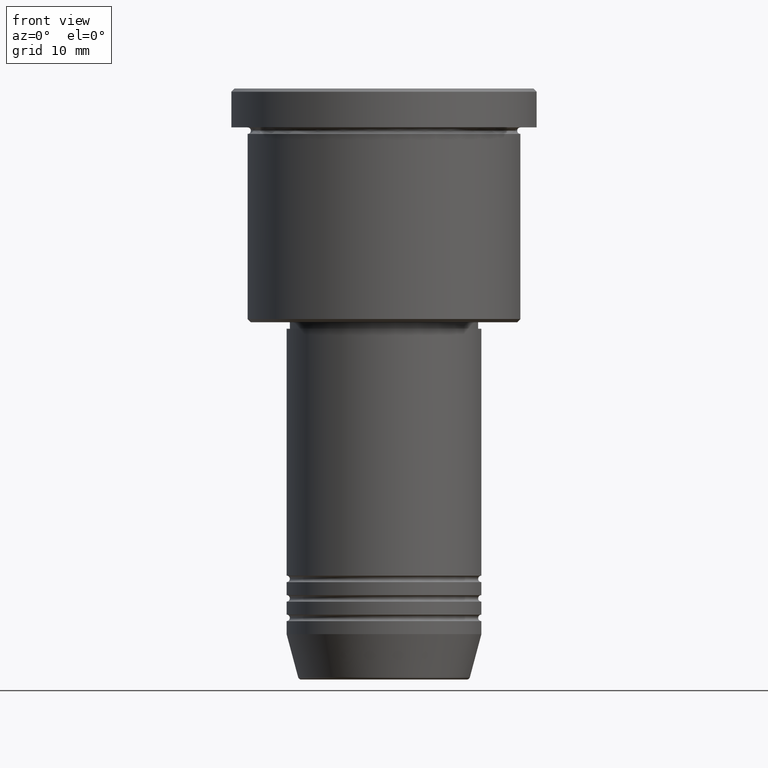
[diagram: clean part render]
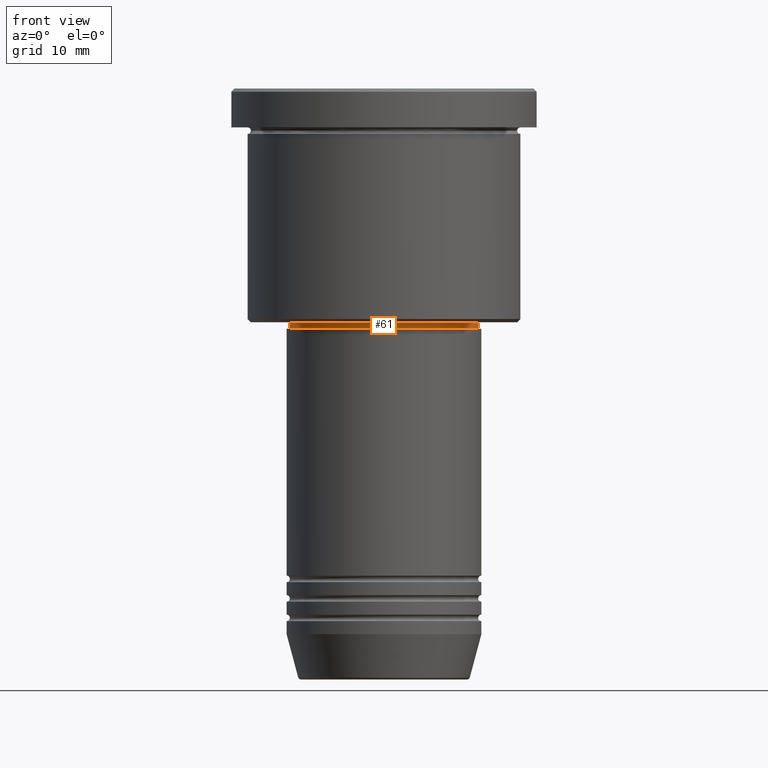
[diagram: same view with one face highlighted and labeled with its STEP entity id]
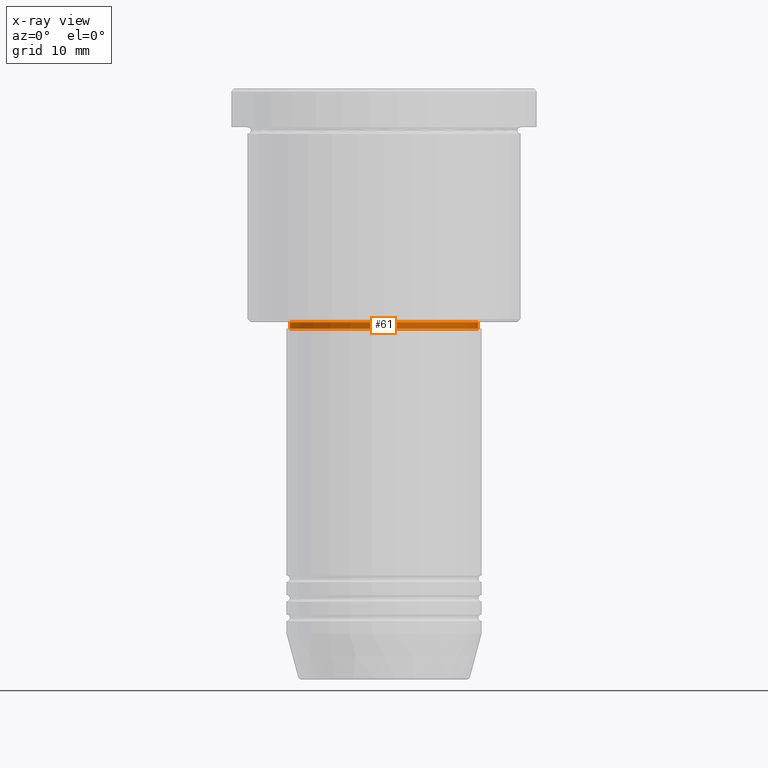
[diagram: x-ray of the same camera — body ghosted, the highlighted face saturated]
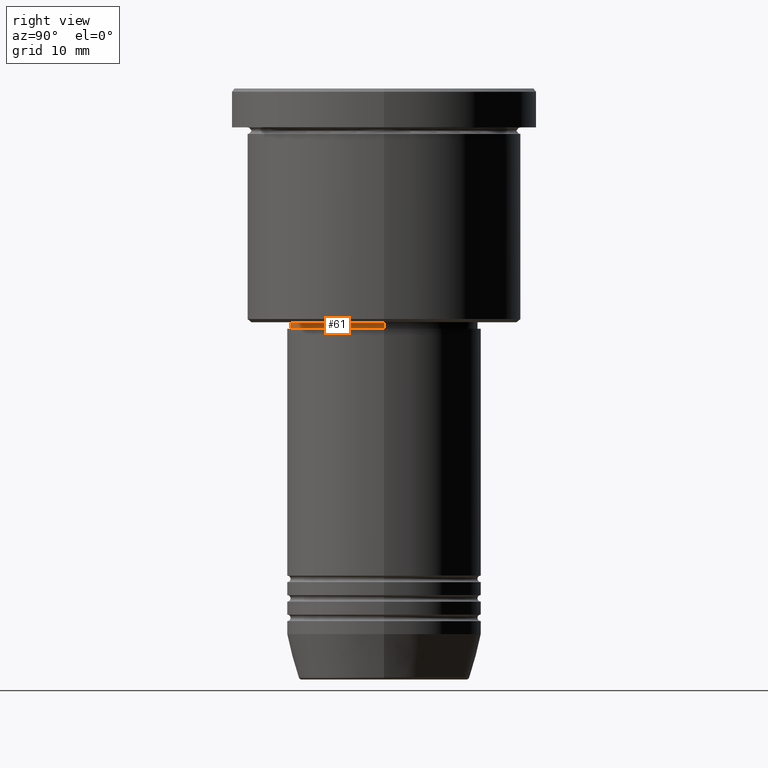
[diagram: same view with one face highlighted and labeled with its STEP entity id]
A machine part, front view. The second image highlights one B-rep face of the part: STEP entity #61.
The next image is the same camera in x-ray: the body ghosted, the highlighted face saturated — about 0% of this face is hidden behind the body in this view.
A second angle (right view) of the same face is appended — the face is thin or edge-on in the first view.
In plain terms, the highlighted cylindrical surface (partial cylindrical patch) has radius 14.5 mm, axis along (-0, -0, 1).
Its self-contained STEP definition (entity closure, byte-faithful):
#2 = CARTESIAN_POINT ( 'NONE',  ( 0.000000000000000000, 0.000000000000000000, -35.99999999999999289 ) ) ;
#3 = AXIS2_PLACEMENT_3D ( 'NONE', #1177, #1183, #548 ) ;
#31 = VERTEX_POINT ( 'NONE', #698 ) ;
#61 = ADVANCED_FACE ( 'NONE', ( #342 ), #960, .T. ) ;
#87 = VERTEX_POINT ( 'NONE', #976 ) ;
#99 = DIRECTION ( 'NONE',  ( 1.000000000000000000, 0.000000000000000000, 0.000000000000000000 ) ) ;
#115 = EDGE_CURVE ( 'NONE', #87, #765, #1061, .T. ) ;
#136 = ORIENTED_EDGE ( 'NONE', *, *, #115, .F. ) ;
#153 = DIRECTION ( 'NONE',  ( 1.000000000000000000, 0.000000000000000000, 0.000000000000000000 ) ) ;
#156 = CARTESIAN_POINT ( 'NONE',  ( 14.49999999999999822, 0.000000000000000000, 0.000000000000000000 ) ) ;
#182 = EDGE_CURVE ( 'NONE', #765, #1038, #957, .T. ) ;
#298 = EDGE_LOOP ( 'NONE', ( #136, #1087, #869, #482 ) ) ;
#342 = FACE_OUTER_BOUND ( 'NONE', #298, .T. ) ;
#367 = CIRCLE ( 'NONE', #3, 14.49999999999999822 ) ;
#413 = CARTESIAN_POINT ( 'NONE',  ( 0.000000000000000000, 0.000000000000000000, 0.000000000000000000 ) ) ;
#463 = VECTOR ( 'NONE', #992, 1000.000000000000000 ) ;
#482 = ORIENTED_EDGE ( 'NONE', *, *, #182, .F. ) ;
#494 = EDGE_CURVE ( 'NONE', #31, #1038, #1057, .T. ) ;
#519 = CARTESIAN_POINT ( 'NONE',  ( 14.49999999999999822, 0.000000000000000000, -35.99999999999999289 ) ) ;
#544 = DIRECTION ( 'NONE',  ( -0.000000000000000000, -0.000000000000000000, 1.000000000000000000 ) ) ;
#548 = DIRECTION ( 'NONE',  ( 1.000000000000000000, 0.000000000000000000, 0.000000000000000000 ) ) ;
#606 = DIRECTION ( 'NONE',  ( -0.000000000000000000, -0.000000000000000000, 1.000000000000000000 ) ) ;
#667 = EDGE_CURVE ( 'NONE', #87, #31, #367, .T. ) ;
#698 = CARTESIAN_POINT ( 'NONE',  ( 14.49999999999999822, 0.000000000000000000, -36.99999999999999289 ) ) ;
#765 = VERTEX_POINT ( 'NONE', #822 ) ;
#812 = DIRECTION ( 'NONE',  ( -0.000000000000000000, -0.000000000000000000, 1.000000000000000000 ) ) ;
#822 = CARTESIAN_POINT ( 'NONE',  ( -14.49999999999999822, 1.775737858763662015E-15, -35.99999999999999289 ) ) ;
#869 = ORIENTED_EDGE ( 'NONE', *, *, #494, .T. ) ;
#899 = VECTOR ( 'NONE', #606, 1000.000000000000000 ) ;
#957 = CIRCLE ( 'NONE', #1180, 14.49999999999999822 ) ;
#960 = CYLINDRICAL_SURFACE ( 'NONE', #1163, 14.49999999999999822 ) ;
#976 = CARTESIAN_POINT ( 'NONE',  ( -14.49999999999999822, 1.775737858763662015E-15, -36.99999999999999289 ) ) ;
#992 = DIRECTION ( 'NONE',  ( -0.000000000000000000, -0.000000000000000000, 1.000000000000000000 ) ) ;
#1038 = VERTEX_POINT ( 'NONE', #519 ) ;
#1057 = LINE ( 'NONE', #156, #463 ) ;
#1061 = LINE ( 'NONE', #1143, #899 ) ;
#1087 = ORIENTED_EDGE ( 'NONE', *, *, #667, .T. ) ;
#1143 = CARTESIAN_POINT ( 'NONE',  ( -14.49999999999999822, 1.775737858763662015E-15, 0.000000000000000000 ) ) ;
#1163 = AXIS2_PLACEMENT_3D ( 'NONE', #413, #812, #153 ) ;
#1177 = CARTESIAN_POINT ( 'NONE',  ( 0.000000000000000000, 0.000000000000000000, -36.99999999999999289 ) ) ;
#1180 = AXIS2_PLACEMENT_3D ( 'NONE', #2, #544, #99 ) ;
#1183 = DIRECTION ( 'NONE',  ( -0.000000000000000000, -0.000000000000000000, 1.000000000000000000 ) ) ;